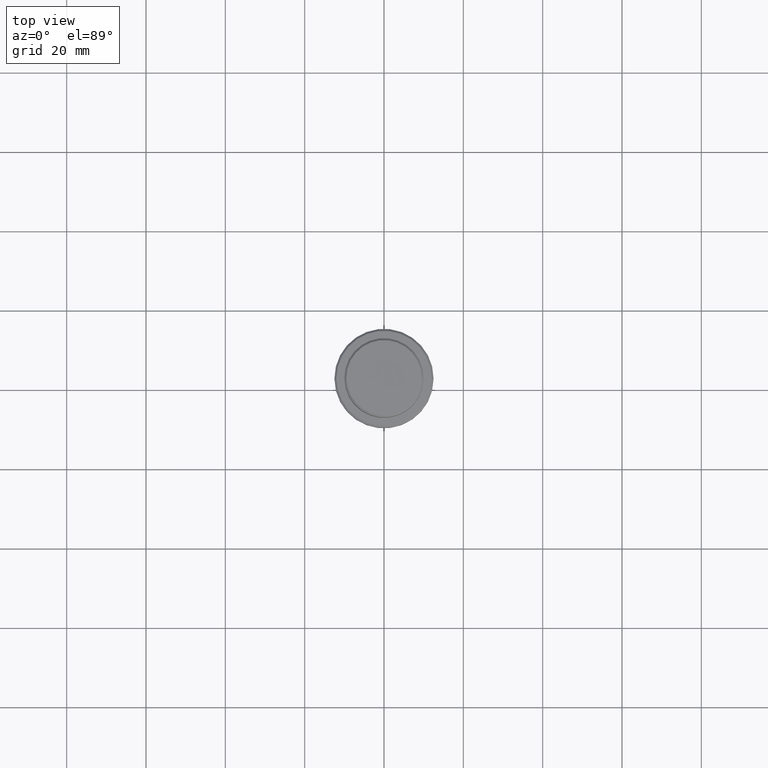
[diagram: clean part render]
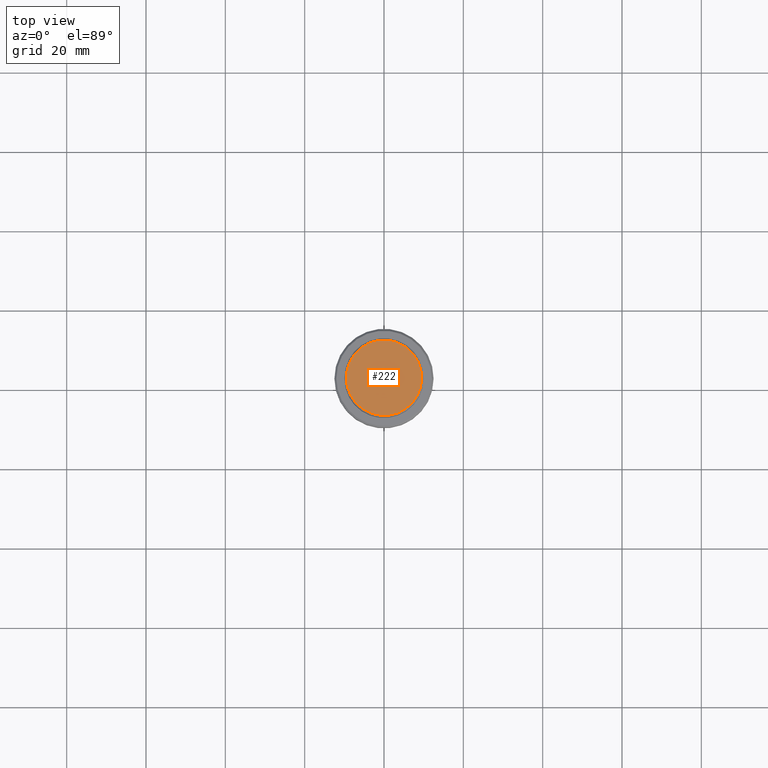
[diagram: same view with one face highlighted and labeled with its STEP entity id]
A machine part, top view. The second image highlights one B-rep face of the part: STEP entity #222.
In plain terms, the highlighted planar face has unit normal (0, -0, 1).
Its self-contained STEP definition (entity closure, byte-faithful):
#62 = DIRECTION ( 'NONE',  ( 1.000000000000000000, 0.000000000000000000, 0.000000000000000000 ) ) ;
#173 = ORIENTED_EDGE ( 'NONE', *, *, #1347, .T. ) ;
#222 = ADVANCED_FACE ( 'NONE', ( #837 ), #811, .T. ) ;
#239 = AXIS2_PLACEMENT_3D ( 'NONE', #1240, #711, #391 ) ;
#262 = CIRCLE ( 'NONE', #1241, 9.500000000000063949 ) ;
#278 = CARTESIAN_POINT ( 'NONE',  ( 0.000000000000000000, 0.000000000000000000, 0.000000000000000000 ) ) ;
#333 = VERTEX_POINT ( 'NONE', #1049 ) ;
#391 = DIRECTION ( 'NONE',  ( 1.000000000000000000, 0.000000000000000000, 0.000000000000000000 ) ) ;
#480 = CARTESIAN_POINT ( 'NONE',  ( 9.500000000000063949, 1.194030629168673217E-15, 0.000000000000000000 ) ) ;
#493 = ORIENTED_EDGE ( 'NONE', *, *, #782, .T. ) ;
#535 = DIRECTION ( 'NONE',  ( -0.000000000000000000, -0.000000000000000000, 1.000000000000000000 ) ) ;
#566 = AXIS2_PLACEMENT_3D ( 'NONE', #1076, #535, #62 ) ;
#711 = DIRECTION ( 'NONE',  ( 0.000000000000000000, -0.000000000000000000, 1.000000000000000000 ) ) ;
#748 = VERTEX_POINT ( 'NONE', #480 ) ;
#782 = EDGE_CURVE ( 'NONE', #333, #748, #262, .T. ) ;
#794 = CIRCLE ( 'NONE', #566, 9.500000000000063949 ) ;
#811 = PLANE ( 'NONE',  #239 ) ;
#826 = DIRECTION ( 'NONE',  ( 1.000000000000000000, 0.000000000000000000, 0.000000000000000000 ) ) ;
#837 = FACE_OUTER_BOUND ( 'NONE', #1350, .T. ) ;
#1049 = CARTESIAN_POINT ( 'NONE',  ( -9.500000000000063949, 0.000000000000000000, 0.000000000000000000 ) ) ;
#1076 = CARTESIAN_POINT ( 'NONE',  ( 0.000000000000000000, 0.000000000000000000, 0.000000000000000000 ) ) ;
#1233 = DIRECTION ( 'NONE',  ( -0.000000000000000000, -0.000000000000000000, 1.000000000000000000 ) ) ;
#1240 = CARTESIAN_POINT ( 'NONE',  ( 0.000000000000000000, 0.000000000000000000, 0.000000000000000000 ) ) ;
#1241 = AXIS2_PLACEMENT_3D ( 'NONE', #278, #1233, #826 ) ;
#1347 = EDGE_CURVE ( 'NONE', #748, #333, #794, .T. ) ;
#1350 = EDGE_LOOP ( 'NONE', ( #493, #173 ) ) ;